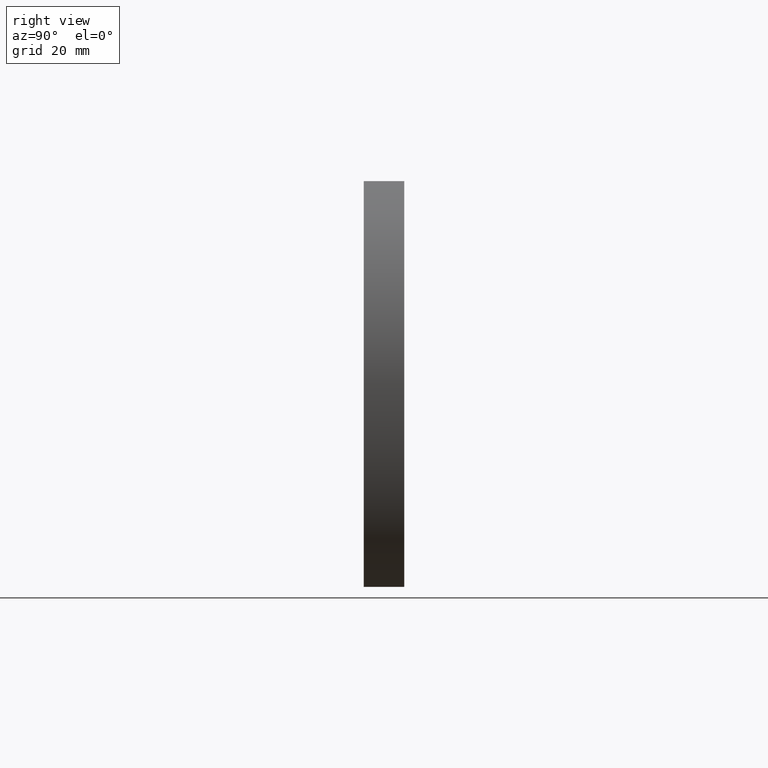
[diagram: clean part render]
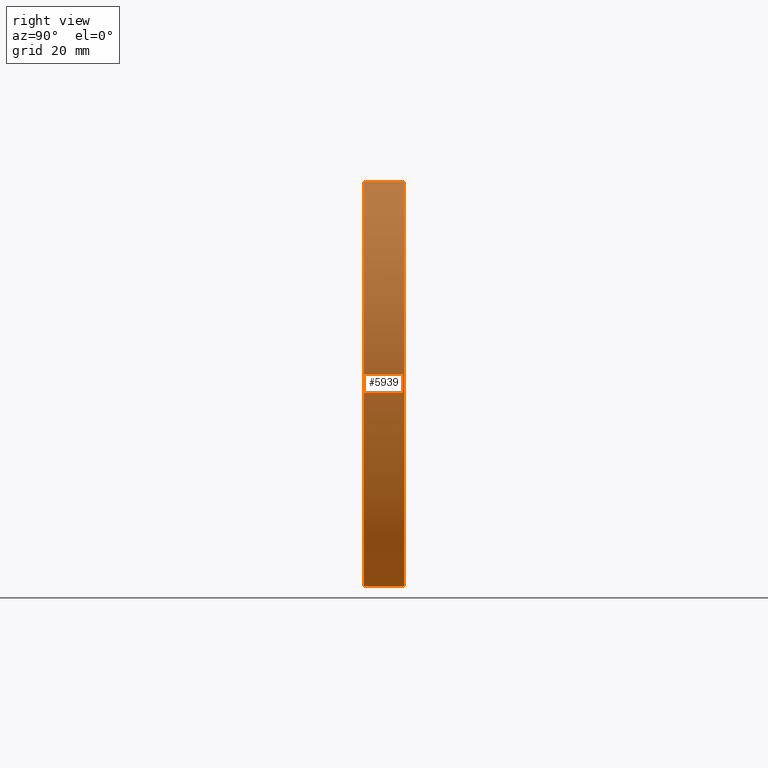
[diagram: same view with one face highlighted and labeled with its STEP entity id]
A machine part, right view. The second image highlights one B-rep face of the part: STEP entity #5939.
In plain terms, the highlighted cylindrical surface (partial cylindrical patch) has radius 59.3629 mm, axis along (-0, -1, -0).
Its self-contained STEP definition (entity closure, byte-faithful):
#34 = ORIENTED_EDGE ( 'NONE', *, *, #6431, .T. ) ;
#1484 = CARTESIAN_POINT ( 'NONE',  ( 44.49999999999997900, 8.000000000000000000, 40.00000000000001400 ) ) ;
#1516 = ORIENTED_EDGE ( 'NONE', *, *, #8490, .T. ) ;
#1531 = CARTESIAN_POINT ( 'NONE',  ( 44.49999999999999300, 0.0000000000000000000, -39.99999999999999300 ) ) ;
#2111 = CIRCLE ( 'NONE', #2185, 59.36290322580642700 ) ;
#2185 = AXIS2_PLACEMENT_3D ( 'NONE', #10784, #9119, #9850 ) ;
#2186 = VERTEX_POINT ( 'NONE', #1531 ) ;
#2331 = DIRECTION ( 'NONE',  ( -0.0000000000000000000, -1.000000000000000000, -0.0000000000000000000 ) ) ;
#3054 = AXIS2_PLACEMENT_3D ( 'NONE', #3142, #7360, #4050 ) ;
#3096 = VERTEX_POINT ( 'NONE', #7006 ) ;
#3142 = CARTESIAN_POINT ( 'NONE',  ( 0.6370967741935809100, 8.000000000000000000, 0.0000000000000000000 ) ) ;
#3666 = CARTESIAN_POINT ( 'NONE',  ( 0.6370967741935809100, 0.0000000000000000000, 0.0000000000000000000 ) ) ;
#3944 = VECTOR ( 'NONE', #2331, 1000.000000000000000 ) ;
#3949 = CARTESIAN_POINT ( 'NONE',  ( 44.49999999999999300, 8.000000000000000000, -39.99999999999999300 ) ) ;
#4050 = DIRECTION ( 'NONE',  ( 0.0000000000000000000, 0.0000000000000000000, -1.000000000000000000 ) ) ;
#4070 = CYLINDRICAL_SURFACE ( 'NONE', #3054, 59.36290322580642700 ) ;
#4106 = EDGE_CURVE ( 'NONE', #3096, #5627, #2111, .T. ) ;
#4306 = CIRCLE ( 'NONE', #10742, 59.36290322580642700 ) ;
#4678 = ORIENTED_EDGE ( 'NONE', *, *, #4106, .F. ) ;
#4739 = DIRECTION ( 'NONE',  ( -0.0000000000000000000, -1.000000000000000000, -0.0000000000000000000 ) ) ;
#4853 = LINE ( 'NONE', #1484, #3944 ) ;
#5189 = VERTEX_POINT ( 'NONE', #9570 ) ;
#5192 = EDGE_CURVE ( 'NONE', #5627, #2186, #10396, .T. ) ;
#5237 = CARTESIAN_POINT ( 'NONE',  ( 44.49999999999999300, 8.000000000000000000, -39.99999999999999300 ) ) ;
#5627 = VERTEX_POINT ( 'NONE', #3949 ) ;
#5939 = ADVANCED_FACE ( 'NONE', ( #6021 ), #4070, .T. ) ;
#6021 = FACE_OUTER_BOUND ( 'NONE', #6046, .T. ) ;
#6046 = EDGE_LOOP ( 'NONE', ( #1516, #8298, #4678, #34 ) ) ;
#6431 = EDGE_CURVE ( 'NONE', #3096, #5189, #4853, .T. ) ;
#7006 = CARTESIAN_POINT ( 'NONE',  ( 44.49999999999997900, 8.000000000000000000, 40.00000000000001400 ) ) ;
#7360 = DIRECTION ( 'NONE',  ( -0.0000000000000000000, -1.000000000000000000, -0.0000000000000000000 ) ) ;
#7862 = DIRECTION ( 'NONE',  ( 0.0000000000000000000, 1.000000000000000000, -0.0000000000000000000 ) ) ;
#8298 = ORIENTED_EDGE ( 'NONE', *, *, #5192, .F. ) ;
#8490 = EDGE_CURVE ( 'NONE', #5189, #2186, #4306, .T. ) ;
#8626 = DIRECTION ( 'NONE',  ( 0.0000000000000000000, 0.0000000000000000000, -1.000000000000000000 ) ) ;
#9119 = DIRECTION ( 'NONE',  ( 0.0000000000000000000, 1.000000000000000000, -0.0000000000000000000 ) ) ;
#9570 = CARTESIAN_POINT ( 'NONE',  ( 44.49999999999997900, 0.0000000000000000000, 40.00000000000001400 ) ) ;
#9850 = DIRECTION ( 'NONE',  ( 0.0000000000000000000, 0.0000000000000000000, -1.000000000000000000 ) ) ;
#10396 = LINE ( 'NONE', #5237, #10520 ) ;
#10520 = VECTOR ( 'NONE', #4739, 1000.000000000000000 ) ;
#10742 = AXIS2_PLACEMENT_3D ( 'NONE', #3666, #7862, #8626 ) ;
#10784 = CARTESIAN_POINT ( 'NONE',  ( 0.6370967741935809100, 8.000000000000000000, 0.0000000000000000000 ) ) ;